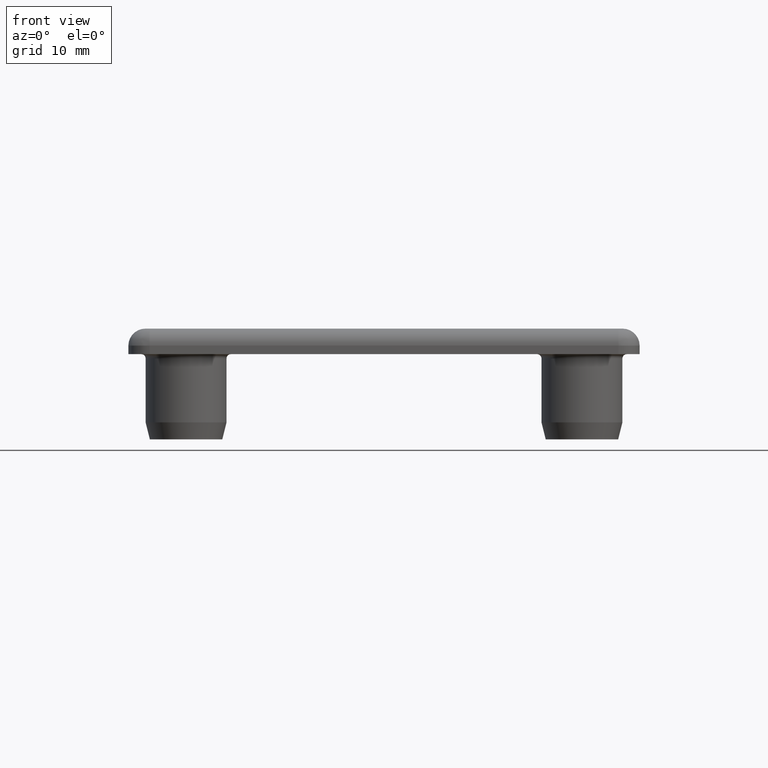
[diagram: clean part render]
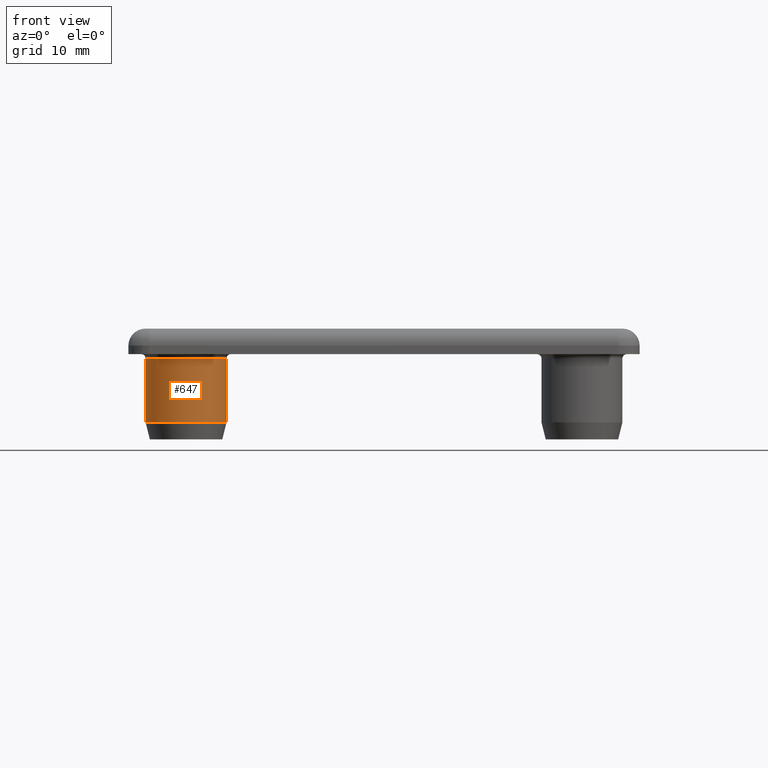
[diagram: same view with one face highlighted and labeled with its STEP entity id]
A machine part, front view. The second image highlights one B-rep face of the part: STEP entity #647.
In plain terms, the highlighted cylindrical surface (bore or boss wall) has radius 4.75 mm, axis along (0, 0, 1).
Its self-contained STEP definition (entity closure, byte-faithful):
#79=CYLINDRICAL_SURFACE('',#739,4.75);
#115=FACE_BOUND('',#208,.T.);
#143=FACE_OUTER_BOUND('',#207,.T.);
#207=EDGE_LOOP('',(#505));
#208=EDGE_LOOP('',(#506));
#269=CIRCLE('',#712,4.75);
#286=CIRCLE('',#735,4.75);
#331=VERTEX_POINT('',#1083);
#346=VERTEX_POINT('',#1121);
#393=EDGE_CURVE('',#331,#331,#269,.T.);
#410=EDGE_CURVE('',#346,#346,#286,.T.);
#505=ORIENTED_EDGE('',*,*,#410,.T.);
#506=ORIENTED_EDGE('',*,*,#393,.T.);
#647=ADVANCED_FACE('',(#143,#115),#79,.T.);
#712=AXIS2_PLACEMENT_3D('',#1084,#855,#856);
#735=AXIS2_PLACEMENT_3D('',#1122,#901,#902);
#739=AXIS2_PLACEMENT_3D('',#1128,#909,#910);
#855=DIRECTION('center_axis',(0.,0.,-1.));
#856=DIRECTION('ref_axis',(-1.,0.,0.));
#901=DIRECTION('center_axis',(0.,0.,1.));
#902=DIRECTION('ref_axis',(-1.,0.,0.));
#909=DIRECTION('center_axis',(0.,0.,1.));
#910=DIRECTION('ref_axis',(0.,-1.,0.));
#1083=CARTESIAN_POINT('',(-27.98,6.77,-0.500000000000003));
#1084=CARTESIAN_POINT('Origin',(-23.23,6.77,-0.500000000000002));
#1121=CARTESIAN_POINT('',(-18.48,6.77,-8.));
#1122=CARTESIAN_POINT('Origin',(-23.23,6.77,-8.));
#1128=CARTESIAN_POINT('Origin',(-23.23,6.77,-8.00000001));